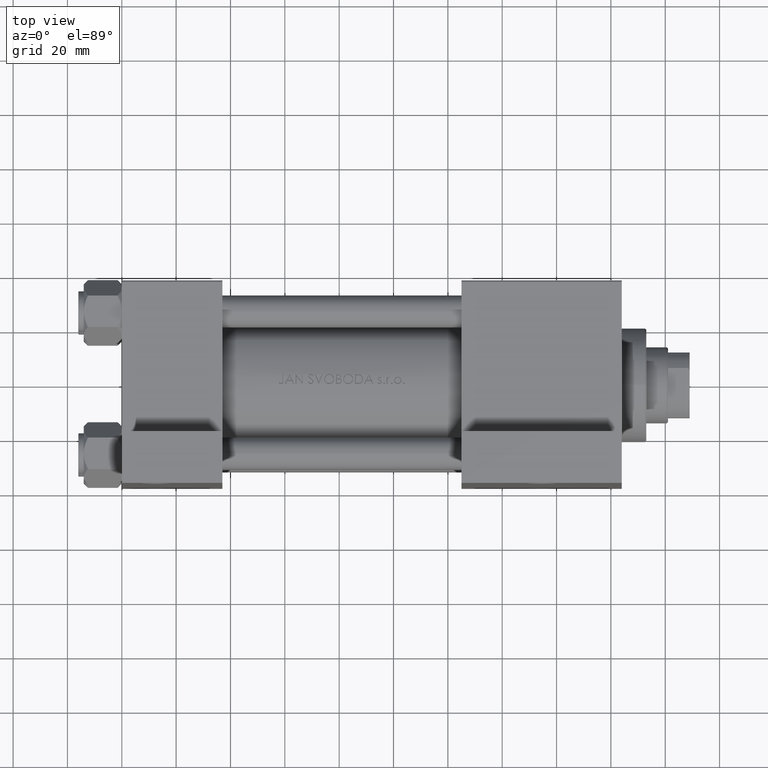
[diagram: clean part render]
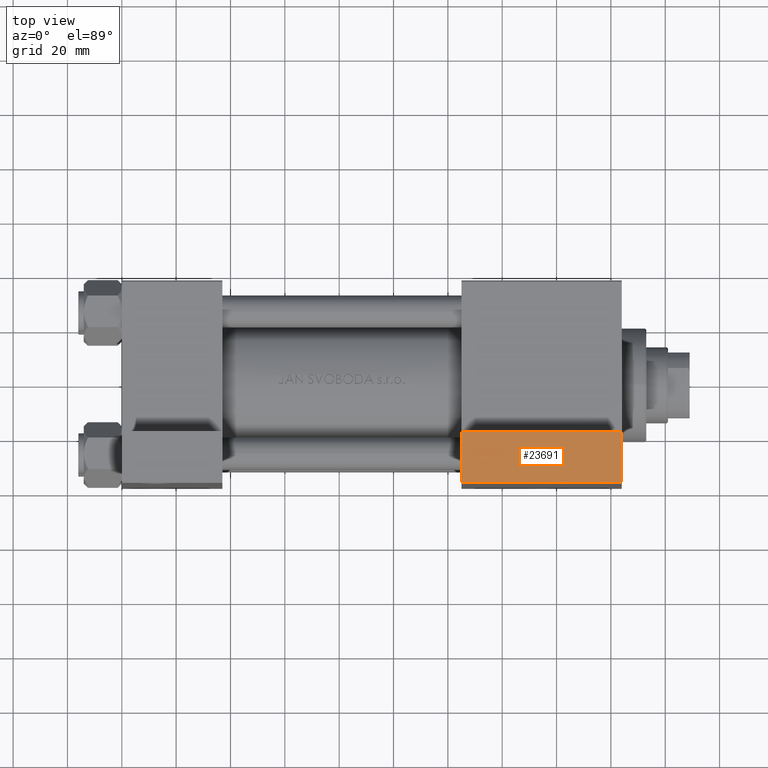
[diagram: same view with one face highlighted and labeled with its STEP entity id]
A machine part, top view. The second image highlights one B-rep face of the part: STEP entity #23691.
In plain terms, the highlighted planar face has unit normal (-0, 0, 1).
Its self-contained STEP definition (entity closure, byte-faithful):
#1657 = VERTEX_POINT ( 'NONE', #23005 ) ;
#3790 = CARTESIAN_POINT ( 'NONE',  ( 124.9999999999999858, -63.50000000000000000, -37.50000000000000000 ) ) ;
#5005 = EDGE_CURVE ( 'NONE', #25281, #15031, #26550, .T. ) ;
#10173 = VERTEX_POINT ( 'NONE', #23865 ) ;
#12748 = FACE_OUTER_BOUND ( 'NONE', #40726, .T. ) ;
#14100 = LINE ( 'NONE', #47269, #31063 ) ;
#15031 = VERTEX_POINT ( 'NONE', #15260 ) ;
#15093 = DIRECTION ( 'NONE',  ( 0.000000000000000000, 0.000000000000000000, -1.000000000000000000 ) ) ;
#15260 = CARTESIAN_POINT ( 'NONE',  ( 124.9999999999999858, -63.50000000000000000, -18.50000000000000000 ) ) ;
#16815 = EDGE_CURVE ( 'NONE', #15031, #10173, #33583, .T. ) ;
#21997 = DIRECTION ( 'NONE',  ( -1.000000000000000000, 4.704334850106594808E-16, -0.000000000000000000 ) ) ;
#23005 = CARTESIAN_POINT ( 'NONE',  ( 184.0000000000000000, -63.50000000000002842, -37.50000000000000000 ) ) ;
#23691 = ADVANCED_FACE ( 'NONE', ( #12748 ), #30748, .T. ) ;
#23865 = CARTESIAN_POINT ( 'NONE',  ( 124.9999999999999858, -63.50000000000000000, -37.50000000000000000 ) ) ;
#25281 = VERTEX_POINT ( 'NONE', #27240 ) ;
#25349 = ORIENTED_EDGE ( 'NONE', *, *, #16815, .T. ) ;
#26388 = CARTESIAN_POINT ( 'NONE',  ( 124.9999999999999858, -63.50000000000000000, -18.50000000000000000 ) ) ;
#26550 = LINE ( 'NONE', #29654, #27656 ) ;
#27240 = CARTESIAN_POINT ( 'NONE',  ( 184.0000000000000000, -63.50000000000002842, -18.50000000000000000 ) ) ;
#27656 = VECTOR ( 'NONE', #21997, 1000.000000000000000 ) ;
#29522 = EDGE_CURVE ( 'NONE', #1657, #10173, #36724, .T. ) ;
#29654 = CARTESIAN_POINT ( 'NONE',  ( 124.9999999999999858, -63.50000000000000000, -18.50000000000000000 ) ) ;
#30748 = PLANE ( 'NONE',  #30971 ) ;
#30815 = ORIENTED_EDGE ( 'NONE', *, *, #29522, .F. ) ;
#30971 = AXIS2_PLACEMENT_3D ( 'NONE', #35722, #42947, #37736 ) ;
#31063 = VECTOR ( 'NONE', #36900, 1000.000000000000000 ) ;
#31868 = VECTOR ( 'NONE', #33105, 1000.000000000000000 ) ;
#33105 = DIRECTION ( 'NONE',  ( -1.000000000000000000, 4.704334850106594808E-16, -0.000000000000000000 ) ) ;
#33583 = LINE ( 'NONE', #26388, #40878 ) ;
#35722 = CARTESIAN_POINT ( 'NONE',  ( 124.9999999999999858, -63.50000000000000000, -18.50000000000000000 ) ) ;
#36724 = LINE ( 'NONE', #3790, #31868 ) ;
#36900 = DIRECTION ( 'NONE',  ( 0.000000000000000000, 0.000000000000000000, -1.000000000000000000 ) ) ;
#37736 = DIRECTION ( 'NONE',  ( 1.000000000000000000, -4.704334850106594808E-16, 0.000000000000000000 ) ) ;
#40259 = ORIENTED_EDGE ( 'NONE', *, *, #5005, .T. ) ;
#40726 = EDGE_LOOP ( 'NONE', ( #30815, #41609, #40259, #25349 ) ) ;
#40878 = VECTOR ( 'NONE', #15093, 1000.000000000000000 ) ;
#41609 = ORIENTED_EDGE ( 'NONE', *, *, #43115, .F. ) ;
#42947 = DIRECTION ( 'NONE',  ( -4.704334850106594808E-16, -1.000000000000000000, 0.000000000000000000 ) ) ;
#43115 = EDGE_CURVE ( 'NONE', #25281, #1657, #14100, .T. ) ;
#47269 = CARTESIAN_POINT ( 'NONE',  ( 184.0000000000000000, -63.50000000000002842, -18.50000000000000000 ) ) ;